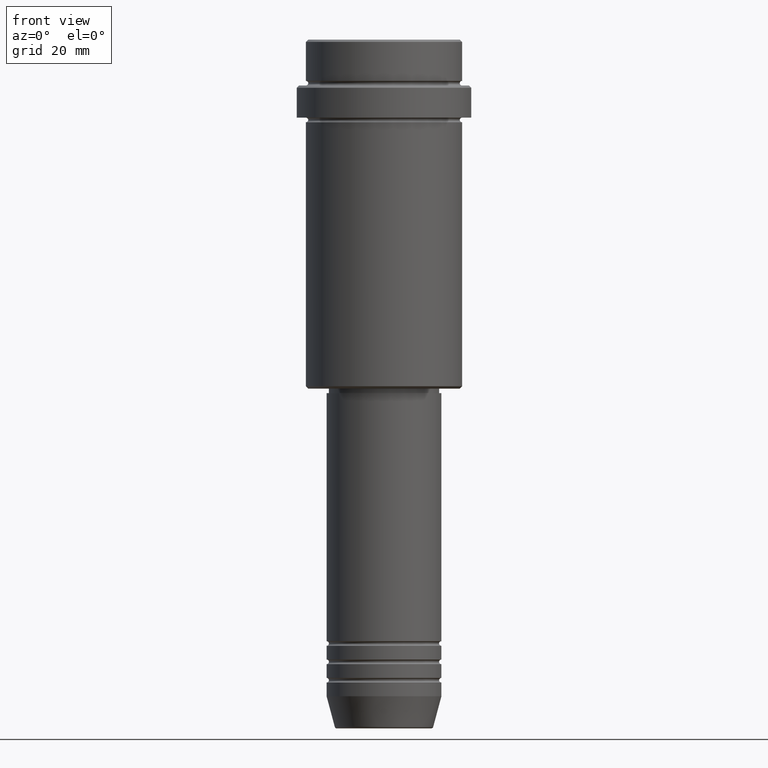
[diagram: clean part render]
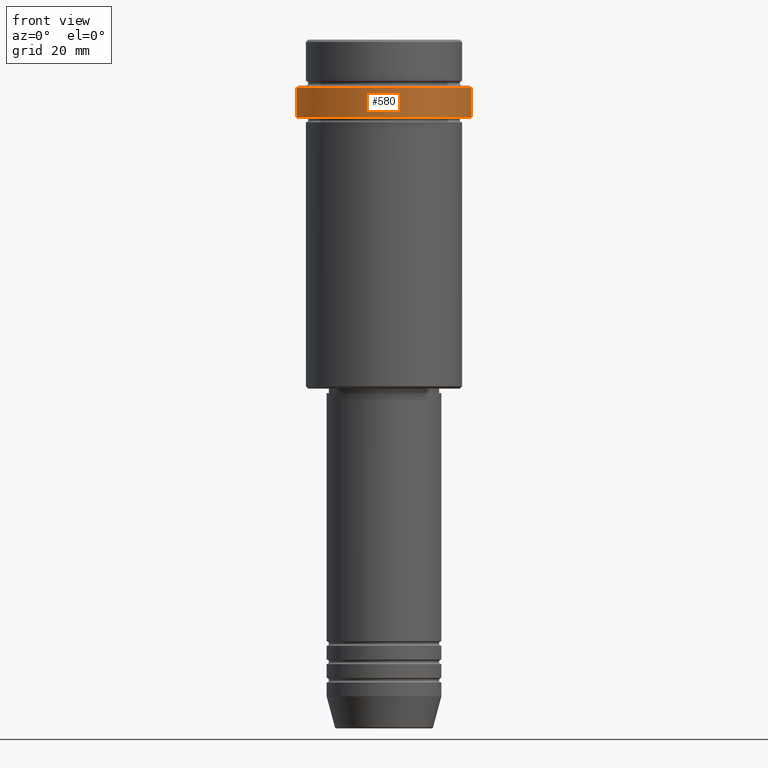
[diagram: same view with one face highlighted and labeled with its STEP entity id]
A machine part, front view. The second image highlights one B-rep face of the part: STEP entity #580.
In plain terms, the highlighted cylindrical surface (partial cylindrical patch) has radius 19 mm, axis along (-0, -0, 1).
Its self-contained STEP definition (entity closure, byte-faithful):
#34 = AXIS2_PLACEMENT_3D ( 'NONE', #82, #178, #1191 ) ;
#69 = LINE ( 'NONE', #279, #729 ) ;
#73 = VECTOR ( 'NONE', #1125, 1000.000000000000000 ) ;
#76 = CIRCLE ( 'NONE', #1234, 18.99999999999998579 ) ;
#78 = CARTESIAN_POINT ( 'NONE',  ( 18.99999999999998579, 0.000000000000000000, -10.50000000000001243 ) ) ;
#80 = VERTEX_POINT ( 'NONE', #78 ) ;
#82 = CARTESIAN_POINT ( 'NONE',  ( 0.000000000000000000, 0.000000000000000000, -10.50000000000001243 ) ) ;
#105 = CARTESIAN_POINT ( 'NONE',  ( 0.000000000000000000, 0.000000000000000000, -17.00000000000000000 ) ) ;
#146 = ORIENTED_EDGE ( 'NONE', *, *, #478, .F. ) ;
#168 = VERTEX_POINT ( 'NONE', #319 ) ;
#177 = AXIS2_PLACEMENT_3D ( 'NONE', #1229, #1114, #688 ) ;
#178 = DIRECTION ( 'NONE',  ( 0.000000000000000000, 0.000000000000000000, -1.000000000000000000 ) ) ;
#195 = CARTESIAN_POINT ( 'NONE',  ( -18.99999999999998579, 2.326828918379969393E-15, -17.00000000000000000 ) ) ;
#279 = CARTESIAN_POINT ( 'NONE',  ( 18.99999999999998579, 0.000000000000000000, 0.000000000000000000 ) ) ;
#319 = CARTESIAN_POINT ( 'NONE',  ( -18.99999999999998579, 2.326828918379969393E-15, -10.50000000000001243 ) ) ;
#353 = CARTESIAN_POINT ( 'NONE',  ( -18.99999999999998579, 2.326828918379969393E-15, 0.000000000000000000 ) ) ;
#478 = EDGE_CURVE ( 'NONE', #1314, #168, #1353, .T. ) ;
#543 = VERTEX_POINT ( 'NONE', #1347 ) ;
#580 = ADVANCED_FACE ( 'NONE', ( #908 ), #595, .T. ) ;
#595 = CYLINDRICAL_SURFACE ( 'NONE', #177, 18.99999999999998579 ) ;
#677 = DIRECTION ( 'NONE',  ( 1.000000000000000000, 0.000000000000000000, 0.000000000000000000 ) ) ;
#688 = DIRECTION ( 'NONE',  ( 1.000000000000000000, 0.000000000000000000, 0.000000000000000000 ) ) ;
#720 = DIRECTION ( 'NONE',  ( -0.000000000000000000, -0.000000000000000000, 1.000000000000000000 ) ) ;
#729 = VECTOR ( 'NONE', #720, 1000.000000000000000 ) ;
#730 = CIRCLE ( 'NONE', #34, 18.99999999999998579 ) ;
#777 = EDGE_CURVE ( 'NONE', #1314, #543, #76, .T. ) ;
#818 = ORIENTED_EDGE ( 'NONE', *, *, #1352, .T. ) ;
#907 = EDGE_CURVE ( 'NONE', #543, #80, #69, .T. ) ;
#908 = FACE_OUTER_BOUND ( 'NONE', #1283, .T. ) ;
#989 = DIRECTION ( 'NONE',  ( -0.000000000000000000, -0.000000000000000000, 1.000000000000000000 ) ) ;
#1090 = ORIENTED_EDGE ( 'NONE', *, *, #907, .T. ) ;
#1114 = DIRECTION ( 'NONE',  ( -0.000000000000000000, -0.000000000000000000, 1.000000000000000000 ) ) ;
#1125 = DIRECTION ( 'NONE',  ( -0.000000000000000000, -0.000000000000000000, 1.000000000000000000 ) ) ;
#1191 = DIRECTION ( 'NONE',  ( 1.000000000000000000, 0.000000000000000000, 0.000000000000000000 ) ) ;
#1229 = CARTESIAN_POINT ( 'NONE',  ( 0.000000000000000000, 0.000000000000000000, 0.000000000000000000 ) ) ;
#1234 = AXIS2_PLACEMENT_3D ( 'NONE', #105, #989, #677 ) ;
#1283 = EDGE_LOOP ( 'NONE', ( #146, #1382, #1090, #818 ) ) ;
#1314 = VERTEX_POINT ( 'NONE', #195 ) ;
#1347 = CARTESIAN_POINT ( 'NONE',  ( 18.99999999999998579, 0.000000000000000000, -17.00000000000000000 ) ) ;
#1352 = EDGE_CURVE ( 'NONE', #80, #168, #730, .T. ) ;
#1353 = LINE ( 'NONE', #353, #73 ) ;
#1382 = ORIENTED_EDGE ( 'NONE', *, *, #777, .T. ) ;